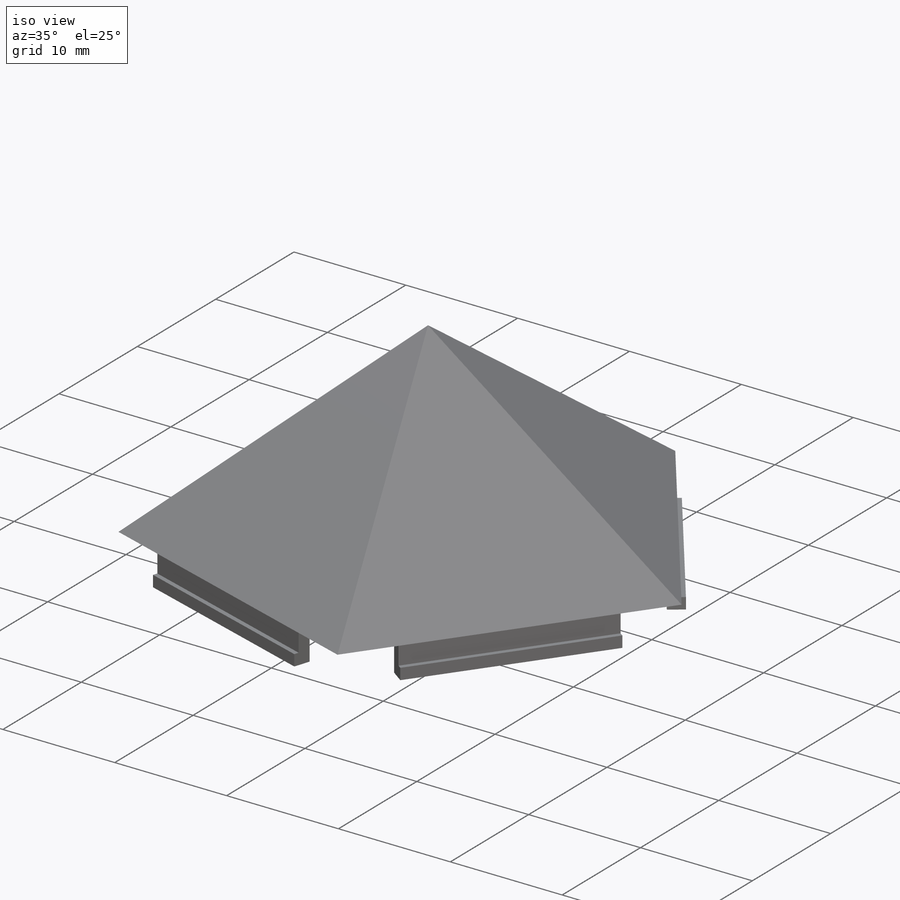
[diagram: iso view]
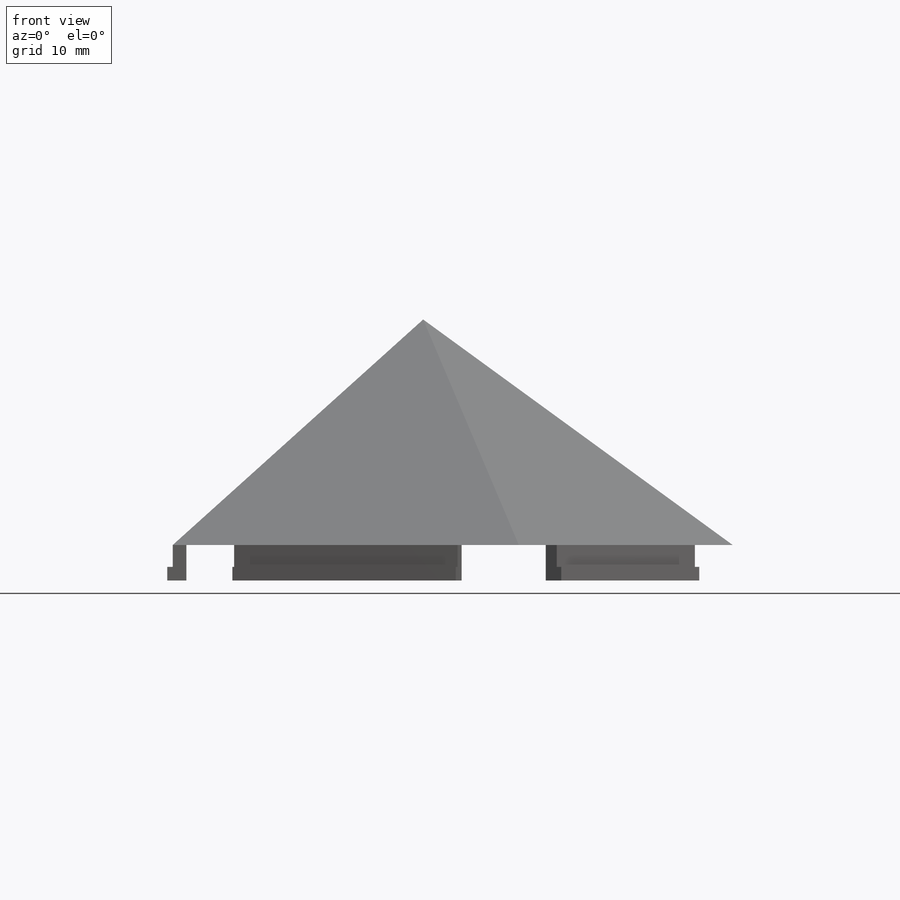
[diagram: front view]
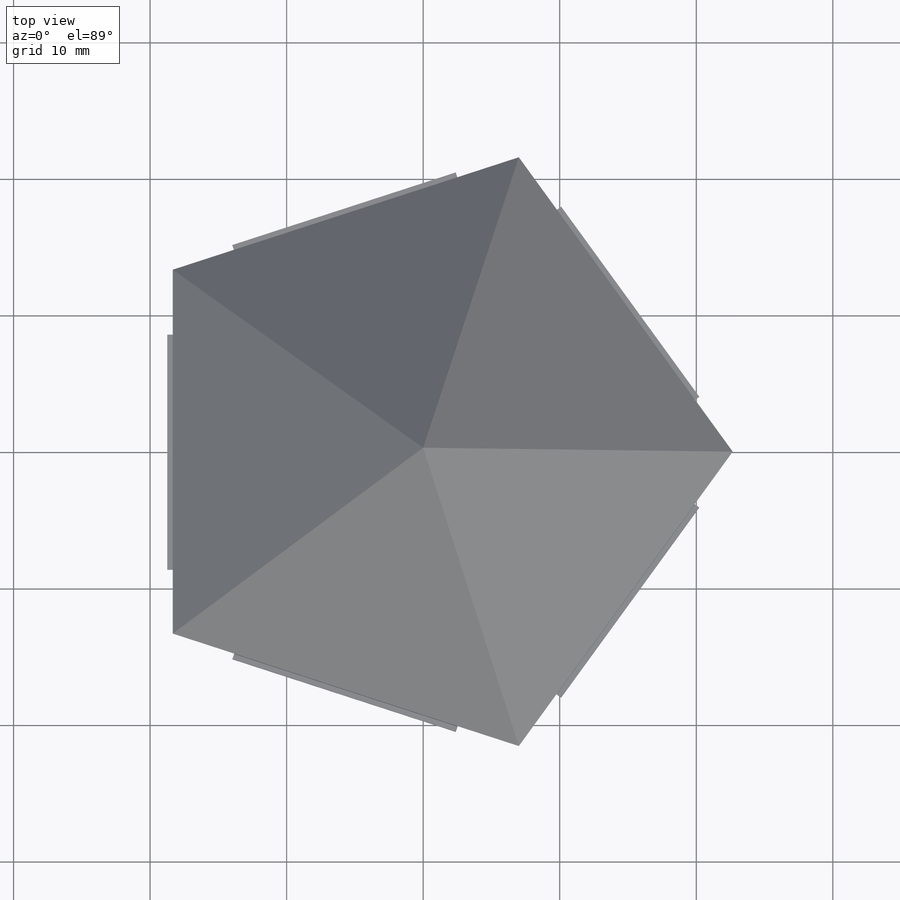
[diagram: top view]
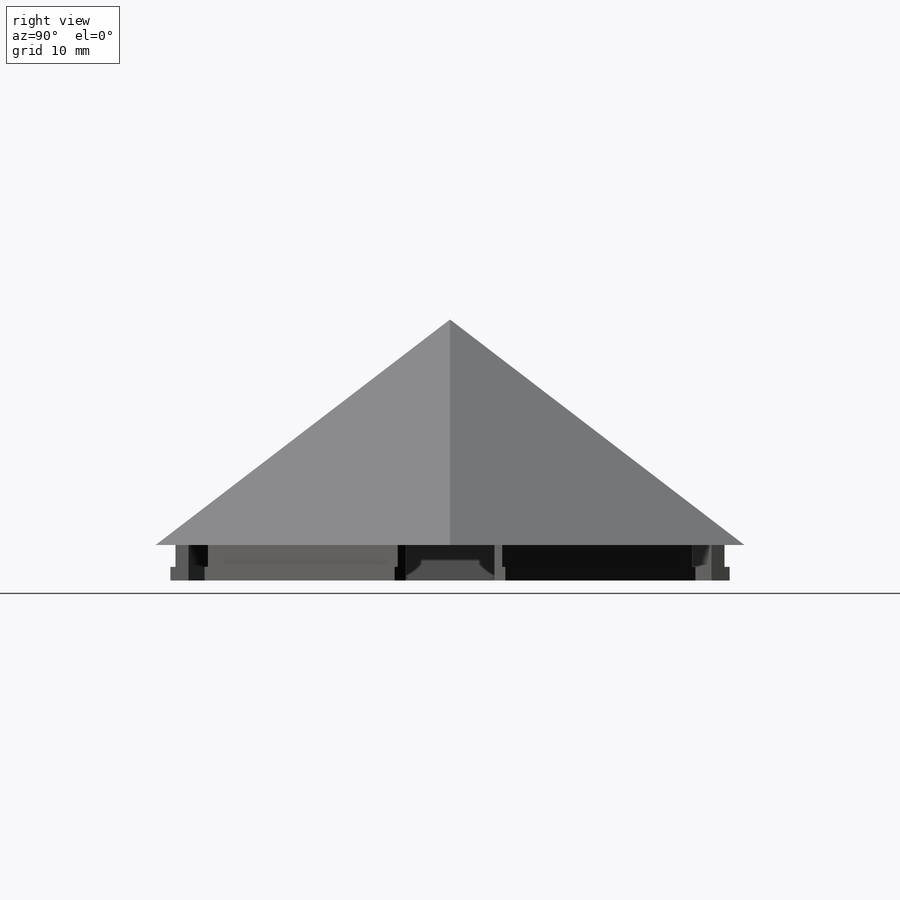
[diagram: right view]
SOLIDWORKS PART (.sldprt)
format: sldprt  version: not decoded by parser v0  size: 210,944 bytes
history: native  units: mm
features: sketch x3, extrude x3, material x1, shell x1 (+12 scaffold rows collapsed)
feature tree (20):
  scaffold x12  (default folders/planes/origin — collapsed)
  material  "Material <not specified>"
  sketch  "Sketch1"  dims[D1=47.5mm D2=2.9mm]
  extrude  "Boss-Extrude1"  Depth=27mm
  sketch  "Sketch2"  dims[D2=17.2mm D3=8.6mm D1=1.0mm D4=5.0]
  extrude  "Boss-Extrude2"  Depth=1.6mm
  sketch  "Sketch3"  dims[D1=1.4mm D2=5.0]
  extrude  "Boss-Extrude3"  Depth=1mm
  shell  "Shell4"  Thickness=0.6mm
decode coverage: 7 of 7 modeling features carry decoded parameters
note: suppression state not decoded; provenance and decode notes live in map.json
